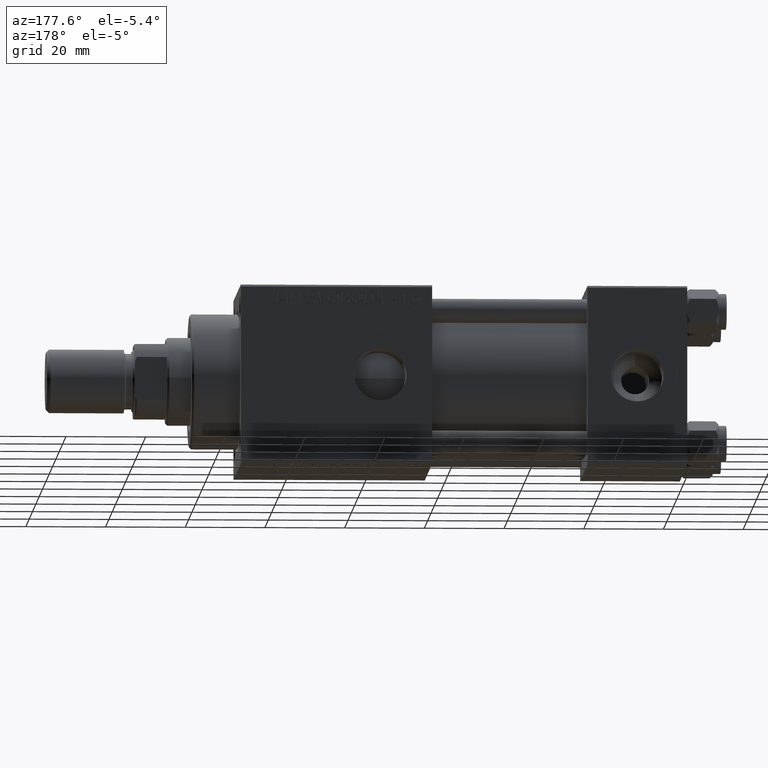
[diagram: clean part render]
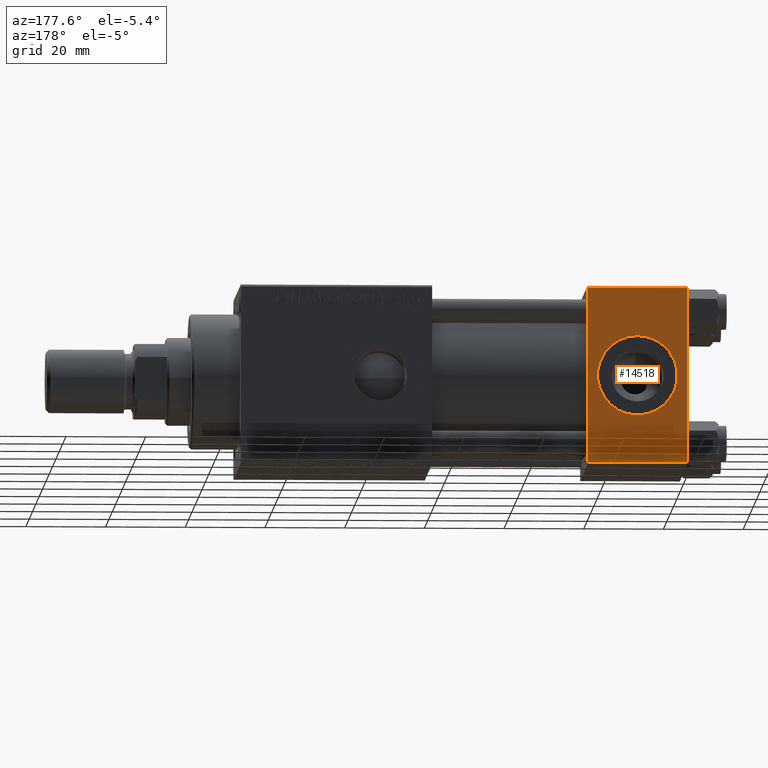
[diagram: same view with one face highlighted and labeled with its STEP entity id]
A machine part, auxiliary view. The second image highlights one B-rep face of the part: STEP entity #14518.
In plain terms, the highlighted planar face has unit normal (0, 1, 0).
Its self-contained STEP definition (entity closure, byte-faithful):
#4 = LINE ( 'NONE', #35946, #12121 ) ;
#460 = CARTESIAN_POINT ( 'NONE',  ( 25.00000000000000000, 22.50000000000000000, 21.99999999999999645 ) ) ;
#2234 = VERTEX_POINT ( 'NONE', #38993 ) ;
#3183 = VERTEX_POINT ( 'NONE', #23643 ) ;
#4459 = LINE ( 'NONE', #460, #20978 ) ;
#4520 = VERTEX_POINT ( 'NONE', #39438 ) ;
#4597 = DIRECTION ( 'NONE',  ( 0.000000000000000000, 0.000000000000000000, 1.000000000000000000 ) ) ;
#5486 = VERTEX_POINT ( 'NONE', #29547 ) ;
#7500 = CARTESIAN_POINT ( 'NONE',  ( 12.50000000000000000, 22.50000000000000000, 0.000000000000000000 ) ) ;
#8146 = CARTESIAN_POINT ( 'NONE',  ( 0.000000000000000000, 22.50000000000000000, 22.50000000000000355 ) ) ;
#9240 = EDGE_CURVE ( 'NONE', #3183, #4520, #4, .T. ) ;
#10789 = CARTESIAN_POINT ( 'NONE',  ( 0.000000000000000000, 22.50000000000000000, -21.99999999999996803 ) ) ;
#11692 = ORIENTED_EDGE ( 'NONE', *, *, #9240, .T. ) ;
#12121 = VECTOR ( 'NONE', #44190, 1000.000000000000000 ) ;
#14518 = ADVANCED_FACE ( 'NONE', ( #37400, #37670 ), #32619, .T. ) ;
#15020 = CARTESIAN_POINT ( 'NONE',  ( 0.000000000000000000, 22.50000000000000000, 21.99999999999999645 ) ) ;
#17426 = DIRECTION ( 'NONE',  ( -0.000000000000000000, 1.000000000000000000, 0.000000000000000000 ) ) ;
#18381 = VERTEX_POINT ( 'NONE', #10789 ) ;
#20978 = VECTOR ( 'NONE', #24696, 1000.000000000000000 ) ;
#21564 = ORIENTED_EDGE ( 'NONE', *, *, #44136, .T. ) ;
#22137 = CIRCLE ( 'NONE', #25547, 9.999999999999996447 ) ;
#22555 = AXIS2_PLACEMENT_3D ( 'NONE', #45129, #17426, #41663 ) ;
#23643 = CARTESIAN_POINT ( 'NONE',  ( 25.00000000000000000, 22.50000000000000000, 21.99999999999999645 ) ) ;
#24696 = DIRECTION ( 'NONE',  ( 1.000000000000000000, 0.000000000000000000, 0.000000000000000000 ) ) ;
#25000 = EDGE_LOOP ( 'NONE', ( #26707, #33155 ) ) ;
#25547 = AXIS2_PLACEMENT_3D ( 'NONE', #7500, #52240, #31982 ) ;
#25843 = EDGE_CURVE ( 'NONE', #47149, #18381, #51846, .T. ) ;
#26464 = EDGE_CURVE ( 'NONE', #5486, #2234, #22137, .T. ) ;
#26707 = ORIENTED_EDGE ( 'NONE', *, *, #45624, .F. ) ;
#26990 = LINE ( 'NONE', #35234, #41200 ) ;
#29547 = CARTESIAN_POINT ( 'NONE',  ( 12.50000000000000178, 22.50000000000000000, -9.999999999999996447 ) ) ;
#31982 = DIRECTION ( 'NONE',  ( 0.000000000000000000, 0.000000000000000000, 1.000000000000000000 ) ) ;
#32460 = EDGE_LOOP ( 'NONE', ( #11692, #52402, #44155, #21564 ) ) ;
#32619 = PLANE ( 'NONE',  #22555 ) ;
#33155 = ORIENTED_EDGE ( 'NONE', *, *, #26464, .F. ) ;
#35234 = CARTESIAN_POINT ( 'NONE',  ( 25.00000000000000000, 22.50000000000000000, -21.99999999999998224 ) ) ;
#35946 = CARTESIAN_POINT ( 'NONE',  ( 25.00000000000000000, 22.50000000000000000, 22.50000000000000355 ) ) ;
#36123 = DIRECTION ( 'NONE',  ( 0.000000000000000000, 0.000000000000000000, -1.000000000000000000 ) ) ;
#36805 = CARTESIAN_POINT ( 'NONE',  ( 12.50000000000000000, 22.50000000000000000, 0.000000000000000000 ) ) ;
#37400 = FACE_BOUND ( 'NONE', #25000, .T. ) ;
#37670 = FACE_OUTER_BOUND ( 'NONE', #32460, .T. ) ;
#38967 = AXIS2_PLACEMENT_3D ( 'NONE', #36805, #49576, #4597 ) ;
#38993 = CARTESIAN_POINT ( 'NONE',  ( 12.50000000000000000, 22.50000000000000000, 9.999999999999996447 ) ) ;
#39295 = EDGE_CURVE ( 'NONE', #4520, #18381, #26990, .T. ) ;
#39438 = CARTESIAN_POINT ( 'NONE',  ( 25.00000000000000000, 22.50000000000000000, -21.99999999999996803 ) ) ;
#41200 = VECTOR ( 'NONE', #47751, 1000.000000000000000 ) ;
#41663 = DIRECTION ( 'NONE',  ( 0.000000000000000000, -0.000000000000000000, 1.000000000000000000 ) ) ;
#44136 = EDGE_CURVE ( 'NONE', #47149, #3183, #4459, .T. ) ;
#44155 = ORIENTED_EDGE ( 'NONE', *, *, #25843, .F. ) ;
#44190 = DIRECTION ( 'NONE',  ( 0.000000000000000000, 0.000000000000000000, -1.000000000000000000 ) ) ;
#45129 = CARTESIAN_POINT ( 'NONE',  ( 25.00000000000000000, 22.50000000000000000, 22.50000000000000355 ) ) ;
#45624 = EDGE_CURVE ( 'NONE', #2234, #5486, #47493, .T. ) ;
#47149 = VERTEX_POINT ( 'NONE', #15020 ) ;
#47493 = CIRCLE ( 'NONE', #38967, 9.999999999999996447 ) ;
#47751 = DIRECTION ( 'NONE',  ( -1.000000000000000000, 0.000000000000000000, 0.000000000000000000 ) ) ;
#49576 = DIRECTION ( 'NONE',  ( 0.000000000000000000, 1.000000000000000000, 0.000000000000000000 ) ) ;
#51846 = LINE ( 'NONE', #8146, #51894 ) ;
#51894 = VECTOR ( 'NONE', #36123, 1000.000000000000000 ) ;
#52240 = DIRECTION ( 'NONE',  ( 0.000000000000000000, 1.000000000000000000, 0.000000000000000000 ) ) ;
#52402 = ORIENTED_EDGE ( 'NONE', *, *, #39295, .T. ) ;